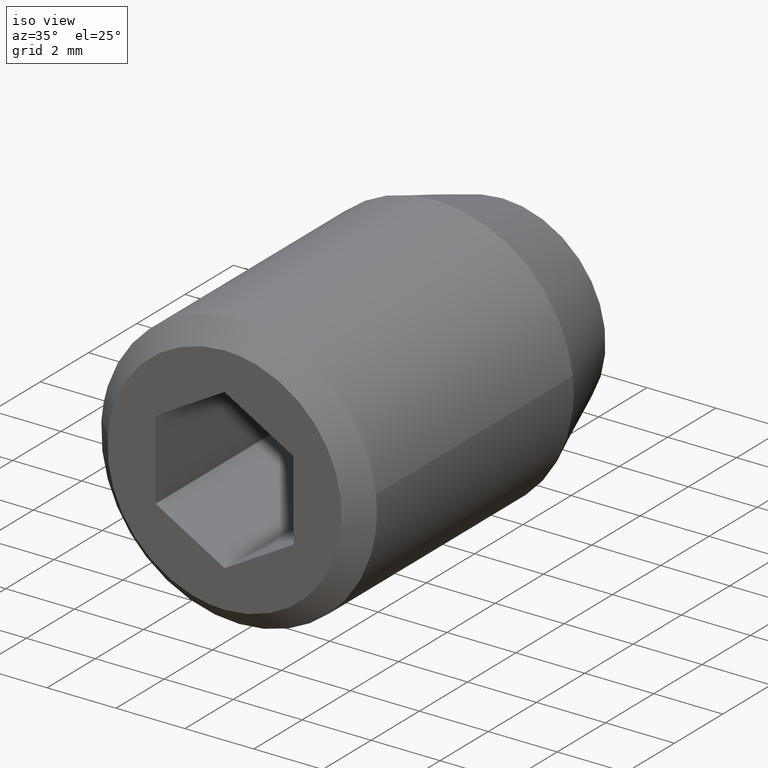
[diagram: clean part render]
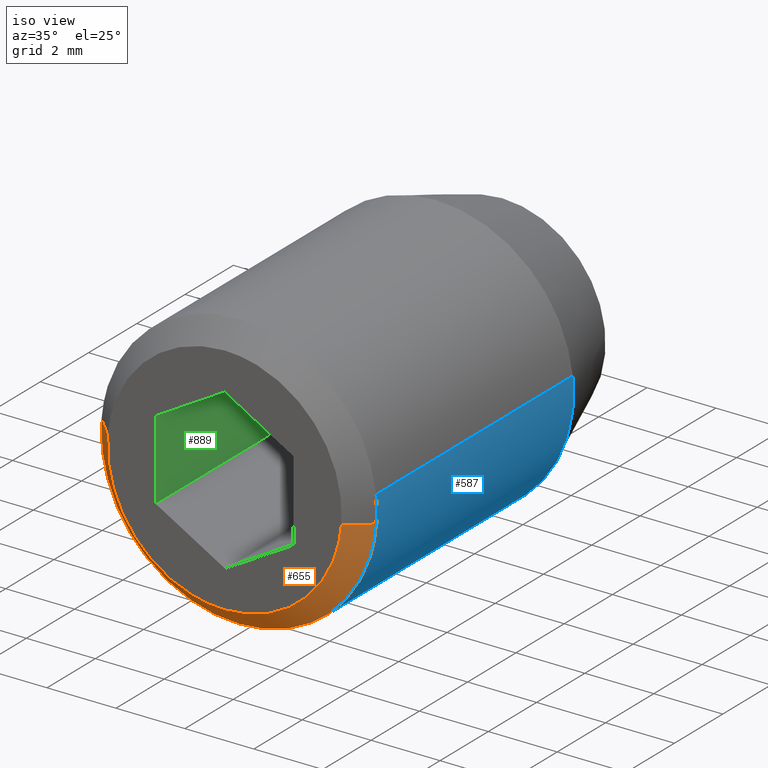
[diagram: same view with three faces highlighted in distinct colors, each labeled with its STEP entity id]
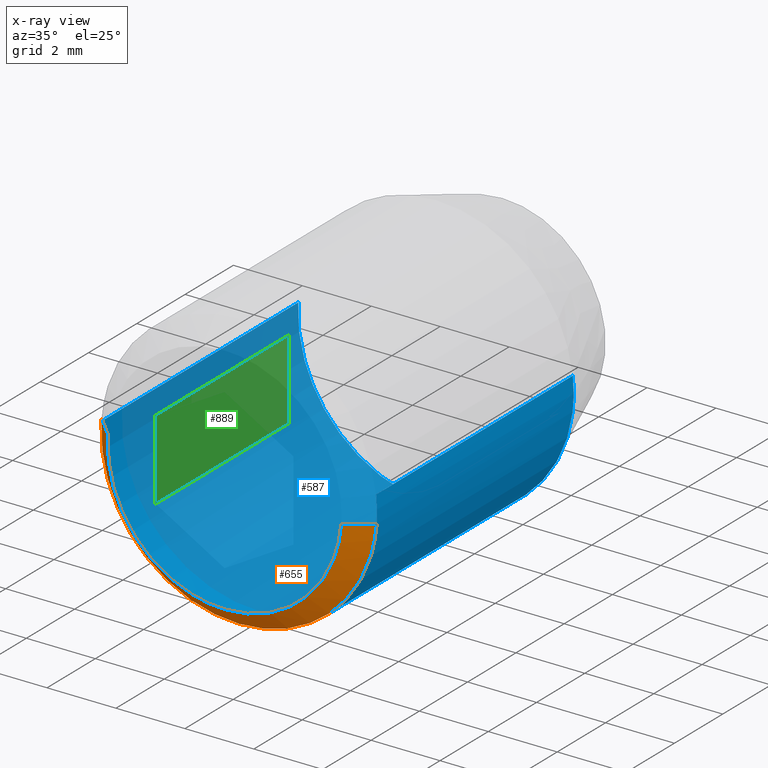
[diagram: x-ray of the same camera — body ghosted, the three highlighted faces saturated]
A machine part, iso view with three faces highlighted in distinct colors.
The next image is the same camera in x-ray (body ghosted, the three faces saturated) — at least one of them is partly hidden behind the body in this view.
Their STEP definitions:

[orange] entity #655 — the highlighted face is a freeform B-spline surface patch.
#473=CARTESIAN_POINT('',(-3.992539216601213,-10.900000000000000,0.244193783502418));
#474=VERTEX_POINT('',#473);
#480=CARTESIAN_POINT('',(-3.987669334932551,-10.899999999999920,0.313836382912057));
#481=VERTEX_POINT('',#480);
#482=CARTESIAN_POINT('',(-3.987669334932551,-10.899999999999920,0.313836382912057));
#483=CARTESIAN_POINT('',(-3.990408173004920,-10.900000000000002,0.279036145624283));
#484=CARTESIAN_POINT('',(-3.992539216601213,-10.900000000000006,0.244193783502418));
#492=(BOUNDED_CURVE()B_SPLINE_CURVE(2,(#482,#483,#484),.UNSPECIFIED.,.F.,.U.)B_SPLINE_CURVE_WITH_KNOTS((3,3),(0.736331300632709,0.739332994623574),.UNSPECIFIED.)CURVE()GEOMETRIC_REPRESENTATION_ITEM()RATIONAL_B_SPLINE_CURVE((0.969723356171695,0.972855509354259,0.976072111073157))REPRESENTATION_ITEM(''));
#493=EDGE_CURVE('',#481,#474,#492,.T.);
#533=CARTESIAN_POINT('',(3.987669334932551,-10.899999999999920,-0.313836382912059));
#534=VERTEX_POINT('',#533);
#550=CARTESIAN_POINT('',(0.0,-10.900000000000000,-4.000000000000001));
#551=VERTEX_POINT('',#550);
#552=CARTESIAN_POINT('',(0.0,-10.900000000000000,-4.000000000000001));
#553=CARTESIAN_POINT('',(3.697561966631584,-10.900000000000004,-4.000000000000001));
#554=CARTESIAN_POINT('',(3.987669334932552,-10.899999999999917,-0.313836382912059));
#562=(BOUNDED_CURVE()B_SPLINE_CURVE(2,(#552,#553,#554),.UNSPECIFIED.,.F.,.U.)B_SPLINE_CURVE_WITH_KNOTS((3,3),(0.0,0.236331300632709),.UNSPECIFIED.)CURVE()GEOMETRIC_REPRESENTATION_ITEM()RATIONAL_B_SPLINE_CURVE((1.0,0.723120658605264,0.969723356171695))REPRESENTATION_ITEM(''));
#563=EDGE_CURVE('',#551,#534,#562,.T.);
#565=CARTESIAN_POINT('',(-3.992539216601213,-10.899999999999999,0.244193783502418));
#566=CARTESIAN_POINT('',(-4.0,-10.900000000000007,0.122210677506903));
#567=CARTESIAN_POINT('',(-4.0,-10.900000000000000,-6.735335E-016));
#568=CARTESIAN_POINT('',(-4.000000000000000,-10.900000000000000,-4.000000000000001));
#569=CARTESIAN_POINT('',(0.0,-10.900000000000000,-4.000000000000001));
#577=(BOUNDED_CURVE()B_SPLINE_CURVE(2,(#565,#566,#567,#568,#569),.UNSPECIFIED.,.F.,.U.)B_SPLINE_CURVE_WITH_KNOTS((3,2,3),(0.739332994623574,0.750000000000000,1.0),.UNSPECIFIED.)CURVE()GEOMETRIC_REPRESENTATION_ITEM()RATIONAL_B_SPLINE_CURVE((0.976072111073157,0.987502825840793,1.0,0.707106781186548,1.0))REPRESENTATION_ITEM(''));
#578=EDGE_CURVE('',#474,#551,#577,.T.);
#588=CARTESIAN_POINT('',(3.374565174686635,-11.515000000000001,-0.265584039038758));
#589=CARTESIAN_POINT('',(3.108981135647878,-11.515000000000002,-3.640149213725392));
#590=CARTESIAN_POINT('',(-0.265584039038757,-11.515000000000001,-3.374565174686636));
#591=CARTESIAN_POINT('',(-3.640149213725392,-11.515000000000002,-3.108981135647879));
#592=CARTESIAN_POINT('',(-3.374565174686635,-11.515000000000001,0.265584039038756));
#593=CARTESIAN_POINT('',(4.002996938938679,-10.884625000000000,-0.315042691508200));
#594=CARTESIAN_POINT('',(3.687954247430480,-10.884624999999998,-4.318039630446878));
#595=CARTESIAN_POINT('',(-0.315042691508200,-10.884625000000000,-4.002996938938680));
#596=CARTESIAN_POINT('',(-4.318039630446878,-10.884624999999998,-3.687954247430481));
#597=CARTESIAN_POINT('',(-4.002996938938679,-10.884625000000000,0.315042691508199));
#605=(BOUNDED_SURFACE()B_SPLINE_SURFACE(2,1,((#588,#593),(#589,#594),(#590,#595),(#591,#596),(#592,#597)),.UNSPECIFIED.,.F.,.F.,.U.)B_SPLINE_SURFACE_WITH_KNOTS((3,2,3),(2,2),(0.0,6.652891132055502,13.305782264111000),(0.0,1.0),.UNSPECIFIED.)GEOMETRIC_REPRESENTATION_ITEM()RATIONAL_B_SPLINE_SURFACE(((1.0,1.0),(0.707106781186548,0.707106781186548),(1.0,1.0),(0.707106781186548,0.707106781186548),(1.0,1.0)))REPRESENTATION_ITEM('')SURFACE());
#606=ORIENTED_EDGE('',*,*,#563,.T.);
#607=CARTESIAN_POINT('',(3.389518934692640,-11.499999999999989,-0.266760925474770));
#608=VERTEX_POINT('',#607);
#609=CARTESIAN_POINT('',(3.389518934692640,-11.499999999999989,-0.266760925474770));
#610=CARTESIAN_POINT('',(3.987669334932551,-10.899999999999920,-0.313836382912059));
#611=QUASI_UNIFORM_CURVE('',1,(#609,#610),.UNSPECIFIED.,.F.,.U.);
#612=EDGE_CURVE('',#608,#534,#611,.T.);
#613=ORIENTED_EDGE('',*,*,#612,.F.);
#614=CARTESIAN_POINT('',(0.0,-11.500000000000000,-3.400000000000001));
#615=VERTEX_POINT('',#614);
#616=CARTESIAN_POINT('',(0.0,-11.500000000000000,-3.400000000000001));
#617=CARTESIAN_POINT('',(3.142927671637728,-11.499999999999998,-3.400000000000002));
#618=CARTESIAN_POINT('',(3.389518934692640,-11.499999999999993,-0.266760925474770));
#626=(BOUNDED_CURVE()B_SPLINE_CURVE(2,(#616,#617,#618),.UNSPECIFIED.,.F.,.U.)B_SPLINE_CURVE_WITH_KNOTS((3,3),(0.0,0.236331300632757),.UNSPECIFIED.)CURVE()GEOMETRIC_REPRESENTATION_ITEM()RATIONAL_B_SPLINE_CURVE((1.0,0.723120658605208,0.969723356171796))REPRESENTATION_ITEM(''));
#627=EDGE_CURVE('',#615,#608,#626,.T.);
#628=ORIENTED_EDGE('',*,*,#627,.F.);
#629=CARTESIAN_POINT('',(-3.389518934692640,-11.499999999999989,0.266760925474769));
#630=VERTEX_POINT('',#629);
#631=CARTESIAN_POINT('',(-3.389518934692639,-11.499999999999993,0.266760925474769));
#632=CARTESIAN_POINT('',(-3.400000000000000,-11.499999999999995,0.133586363826171));
#633=CARTESIAN_POINT('',(-3.400000000000000,-11.500000000000000,-6.735335E-016));
#634=CARTESIAN_POINT('',(-3.400000000000001,-11.500000000000000,-3.400000000000002));
#635=CARTESIAN_POINT('',(0.0,-11.500000000000000,-3.400000000000001));
#643=(BOUNDED_CURVE()B_SPLINE_CURVE(2,(#631,#632,#633,#634,#635),.UNSPECIFIED.,.F.,.U.)B_SPLINE_CURVE_WITH_KNOTS((3,2,3),(0.736331300632757,0.750000000000000,1.0),.UNSPECIFIED.)CURVE()GEOMETRIC_REPRESENTATION_ITEM()RATIONAL_B_SPLINE_CURVE((0.969723356171796,0.983986122581340,1.0,0.707106781186548,1.0))REPRESENTATION_ITEM(''));
#644=EDGE_CURVE('',#630,#615,#643,.T.);
#645=ORIENTED_EDGE('',*,*,#644,.F.);
#646=CARTESIAN_POINT('',(-3.389518934692640,-11.499999999999989,0.266760925474769));
#647=CARTESIAN_POINT('',(-3.987669334932551,-10.899999999999920,0.313836382912057));
#648=QUASI_UNIFORM_CURVE('',1,(#646,#647),.UNSPECIFIED.,.F.,.U.);
#649=EDGE_CURVE('',#630,#481,#648,.T.);
#650=ORIENTED_EDGE('',*,*,#649,.T.);
#651=ORIENTED_EDGE('',*,*,#493,.T.);
#652=ORIENTED_EDGE('',*,*,#578,.T.);
#653=EDGE_LOOP('',(#606,#613,#628,#645,#650,#651,#652));
#654=FACE_OUTER_BOUND('',#653,.T.);
#655=ADVANCED_FACE('',(#654),#605,.T.);

[blue] entity #587 — the highlighted face is a freeform B-spline surface patch.
#305=CARTESIAN_POINT('',(-3.992539304152811,-2.747476998073565,0.244192340534479));
#306=VERTEX_POINT('',#305);
#327=CARTESIAN_POINT('',(3.973876911369272,-2.747477000000000,0.456401460651424));
#328=VERTEX_POINT('',#327);
#342=CARTESIAN_POINT('',(0.0,-2.747477000000000,-4.000000000000001));
#343=VERTEX_POINT('',#342);
#344=CARTESIAN_POINT('',(0.0,-2.747477000000000,-4.000000000000001));
#345=CARTESIAN_POINT('',(4.000000000000000,-2.747477000000000,-4.000000000000001));
#346=CARTESIAN_POINT('',(4.0,-2.747477000000000,-6.735335E-016));
#347=CARTESIAN_POINT('',(4.0,-2.747477000000000,0.228948335031703));
#348=CARTESIAN_POINT('',(3.973876911369273,-2.747477000000000,0.456401460651424));
#356=(BOUNDED_CURVE()B_SPLINE_CURVE(2,(#344,#345,#346,#347,#348),.UNSPECIFIED.,.F.,.U.)B_SPLINE_CURVE_WITH_KNOTS((3,2,3),(0.0,0.250000000000000,0.269767704844007),.UNSPECIFIED.)CURVE()GEOMETRIC_REPRESENTATION_ITEM()RATIONAL_B_SPLINE_CURVE((1.0,0.707106781186548,1.0,0.976840693198738,0.957343837127389))REPRESENTATION_ITEM(''));
#357=EDGE_CURVE('',#343,#328,#356,.T.);
#359=CARTESIAN_POINT('',(-3.243894291882399,-2.747477000000100,-2.340331135350953));
#360=VERTEX_POINT('',#359);
#361=CARTESIAN_POINT('',(-3.243894291882400,-2.747477000000101,-2.340331135350953));
#362=CARTESIAN_POINT('',(-2.046514115828961,-2.747477000000000,-4.000000000000002));
#363=CARTESIAN_POINT('',(0.0,-2.747477000000000,-4.000000000000001));
#371=(BOUNDED_CURVE()B_SPLINE_CURVE(2,(#361,#362,#363),.UNSPECIFIED.,.F.,.U.)B_SPLINE_CURVE_WITH_KNOTS((3,3),(0.850743050382073,1.0),.UNSPECIFIED.)CURVE()GEOMETRIC_REPRESENTATION_ITEM()RATIONAL_B_SPLINE_CURVE((0.859068214727311,0.825134606384512,1.0))REPRESENTATION_ITEM(''));
#372=EDGE_CURVE('',#360,#343,#371,.T.);
#412=CARTESIAN_POINT('',(-3.992539304152811,-2.747476998073565,0.244192340534479));
#413=CARTESIAN_POINT('',(-4.000000000000001,-2.747477000000000,0.122210141865207));
#414=CARTESIAN_POINT('',(-4.0,-2.747477000000000,-6.735335E-016));
#415=CARTESIAN_POINT('',(-4.000000000000001,-2.747477000000001,-1.292305514714377));
#416=CARTESIAN_POINT('',(-3.243894291882399,-2.747477000000101,-2.340331135350953));
#424=(BOUNDED_CURVE()B_SPLINE_CURVE(2,(#412,#413,#414,#415,#416),.UNSPECIFIED.,.F.,.U.)B_SPLINE_CURVE_WITH_KNOTS((3,2,3),(0.739333040792111,0.750000000000000,0.850743050382072),.UNSPECIFIED.)CURVE()GEOMETRIC_REPRESENTATION_ITEM()RATIONAL_B_SPLINE_CURVE((0.976072210021168,0.987502879930598,1.0,0.881972174802036,0.859068214727311))REPRESENTATION_ITEM(''));
#425=EDGE_CURVE('',#306,#360,#424,.T.);
#449=CARTESIAN_POINT('',(3.973876773742199,-10.900000000000000,0.456402658967154));
#450=VERTEX_POINT('',#449);
#466=CARTESIAN_POINT('',(3.973876911369272,-2.747477000000000,0.456401460651424));
#467=CARTESIAN_POINT('',(3.973876773742199,-10.900000000000000,0.456402658967154));
#468=QUASI_UNIFORM_CURVE('',1,(#466,#467),.UNSPECIFIED.,.F.,.U.);
#469=EDGE_CURVE('',#328,#450,#468,.T.);
#473=CARTESIAN_POINT('',(-3.992539216601213,-10.900000000000000,0.244193783502418));
#474=VERTEX_POINT('',#473);
#475=CARTESIAN_POINT('',(-3.992539304152811,-2.747476998073565,0.244192340534479));
#476=CARTESIAN_POINT('',(-3.992539216601213,-10.900000000000000,0.244193783502418));
#477=QUASI_UNIFORM_CURVE('',1,(#475,#476),.UNSPECIFIED.,.F.,.U.);
#478=EDGE_CURVE('',#306,#474,#477,.T.);
#511=CARTESIAN_POINT('',(-3.992539193687467,-2.543663924999999,0.244194158139427));
#512=CARTESIAN_POINT('',(-4.236733351826894,-2.543663924999999,-3.748345035548040));
#513=CARTESIAN_POINT('',(-0.244194158139428,-2.543663924999999,-3.992539193687468));
#514=CARTESIAN_POINT('',(3.748345035548039,-2.543663924999999,-4.236733351826896));
#515=CARTESIAN_POINT('',(3.992539193687467,-2.543663924999999,-0.244194158139429));
#516=CARTESIAN_POINT('',(4.014014553579111,-2.543663924999999,0.106924872386186));
#517=CARTESIAN_POINT('',(3.973876773742854,-2.543663924999999,0.456402658961441));
#518=CARTESIAN_POINT('',(-3.992539193687467,-11.108908401875000,0.244194158139427));
#519=CARTESIAN_POINT('',(-4.236733351826894,-11.108908401875002,-3.748345035548040));
#520=CARTESIAN_POINT('',(-0.244194158139428,-11.108908401875000,-3.992539193687468));
#521=CARTESIAN_POINT('',(3.748345035548039,-11.108908401875002,-4.236733351826896));
#522=CARTESIAN_POINT('',(3.992539193687467,-11.108908401875000,-0.244194158139429));
#523=CARTESIAN_POINT('',(4.014014553579111,-11.108908401874999,0.106924872386186));
#524=CARTESIAN_POINT('',(3.973876773742854,-11.108908401875002,0.456402658961441));
#532=(BOUNDED_SURFACE()B_SPLINE_SURFACE(2,1,((#511,#518),(#512,#519),(#513,#520),(#514,#521),(#515,#522),(#516,#523),(#517,#524)),.UNSPECIFIED.,.F.,.F.,.U.)B_SPLINE_SURFACE_WITH_KNOTS((3,2,2,3),(2,2),(0.0,6.627416997969519,13.254833995939039,14.050124035695379),(0.0,8.565244476875003),.UNSPECIFIED.)GEOMETRIC_REPRESENTATION_ITEM()RATIONAL_B_SPLINE_SURFACE(((1.0,1.0),(0.707106781186548,0.707106781186548),(1.0,1.0),(0.707106781186548,0.707106781186548),(1.0,1.0),(0.964852813742386,0.964852813742386),(0.938140952186599,0.938140952186599)))REPRESENTATION_ITEM('')SURFACE());
#533=CARTESIAN_POINT('',(3.987669334932551,-10.899999999999920,-0.313836382912059));
#534=VERTEX_POINT('',#533);
#535=CARTESIAN_POINT('',(3.987669334932551,-10.899999999999919,-0.313836382912059));
#536=CARTESIAN_POINT('',(4.000000000000001,-10.900000000000000,-0.157160428031352));
#537=CARTESIAN_POINT('',(4.0,-10.900000000000000,-6.735335E-016));
#538=CARTESIAN_POINT('',(4.000000000000000,-10.899999999999997,0.228948940106940));
#539=CARTESIAN_POINT('',(3.973876773742199,-10.899999999999999,0.456402658967154));
#547=(BOUNDED_CURVE()B_SPLINE_CURVE(2,(#535,#536,#537,#538,#539),.UNSPECIFIED.,.F.,.U.)B_SPLINE_CURVE_WITH_KNOTS((3,2,3),(0.236331300632709,0.250000000000000,0.269767755877096),.UNSPECIFIED.)CURVE()GEOMETRIC_REPRESENTATION_ITEM()RATIONAL_B_SPLINE_CURVE((0.969723356171695,0.983986122581283,1.0,0.976840633409755,0.957343736459704))REPRESENTATION_ITEM(''));
#548=EDGE_CURVE('',#534,#450,#547,.T.);
#549=ORIENTED_EDGE('',*,*,#548,.F.);
#550=CARTESIAN_POINT('',(0.0,-10.900000000000000,-4.000000000000001));
#551=VERTEX_POINT('',#550);
#552=CARTESIAN_POINT('',(0.0,-10.900000000000000,-4.000000000000001));
#553=CARTESIAN_POINT('',(3.697561966631584,-10.900000000000004,-4.000000000000001));
#554=CARTESIAN_POINT('',(3.987669334932552,-10.899999999999917,-0.313836382912059));
#562=(BOUNDED_CURVE()B_SPLINE_CURVE(2,(#552,#553,#554),.UNSPECIFIED.,.F.,.U.)B_SPLINE_CURVE_WITH_KNOTS((3,3),(0.0,0.236331300632709),.UNSPECIFIED.)CURVE()GEOMETRIC_REPRESENTATION_ITEM()RATIONAL_B_SPLINE_CURVE((1.0,0.723120658605264,0.969723356171695))REPRESENTATION_ITEM(''));
#563=EDGE_CURVE('',#551,#534,#562,.T.);
#564=ORIENTED_EDGE('',*,*,#563,.F.);
#565=CARTESIAN_POINT('',(-3.992539216601213,-10.899999999999999,0.244193783502418));
#566=CARTESIAN_POINT('',(-4.0,-10.900000000000007,0.122210677506903));
#567=CARTESIAN_POINT('',(-4.0,-10.900000000000000,-6.735335E-016));
#568=CARTESIAN_POINT('',(-4.000000000000000,-10.900000000000000,-4.000000000000001));
#569=CARTESIAN_POINT('',(0.0,-10.900000000000000,-4.000000000000001));
#577=(BOUNDED_CURVE()B_SPLINE_CURVE(2,(#565,#566,#567,#568,#569),.UNSPECIFIED.,.F.,.U.)B_SPLINE_CURVE_WITH_KNOTS((3,2,3),(0.739332994623574,0.750000000000000,1.0),.UNSPECIFIED.)CURVE()GEOMETRIC_REPRESENTATION_ITEM()RATIONAL_B_SPLINE_CURVE((0.976072111073157,0.987502825840793,1.0,0.707106781186548,1.0))REPRESENTATION_ITEM(''));
#578=EDGE_CURVE('',#474,#551,#577,.T.);
#579=ORIENTED_EDGE('',*,*,#578,.F.);
#580=ORIENTED_EDGE('',*,*,#478,.F.);
#581=ORIENTED_EDGE('',*,*,#425,.T.);
#582=ORIENTED_EDGE('',*,*,#372,.T.);
#583=ORIENTED_EDGE('',*,*,#357,.T.);
#584=ORIENTED_EDGE('',*,*,#469,.T.);
#585=EDGE_LOOP('',(#549,#564,#579,#580,#581,#582,#583,#584));
#586=FACE_OUTER_BOUND('',#585,.T.);
#587=ADVANCED_FACE('',(#586),#532,.T.);

[green] entity #889 — the highlighted face is a freeform B-spline surface patch.
#731=CARTESIAN_POINT('',(-2.0,-6.0,1.154701000000000));
#732=VERTEX_POINT('',#731);
#738=CARTESIAN_POINT('',(-2.0,-6.0,-1.154701000000000));
#739=VERTEX_POINT('',#738);
#740=CARTESIAN_POINT('',(-2.0,-6.0,1.154701000000000));
#741=CARTESIAN_POINT('',(-2.0,-6.0,-1.154701000000000));
#742=QUASI_UNIFORM_CURVE('',1,(#740,#741),.UNSPECIFIED.,.F.,.U.);
#743=EDGE_CURVE('',#732,#739,#742,.T.);
#851=CARTESIAN_POINT('',(-2.0,-11.500000000000000,-1.154701000000000));
#852=VERTEX_POINT('',#851);
#860=CARTESIAN_POINT('',(-2.0,-6.0,-1.154701000000000));
#861=CARTESIAN_POINT('',(-2.0,-11.500000000000000,-1.154701000000000));
#862=QUASI_UNIFORM_CURVE('',1,(#860,#861),.UNSPECIFIED.,.F.,.U.);
#863=EDGE_CURVE('',#739,#852,#862,.T.);
#868=CARTESIAN_POINT('',(-2.0,-11.774724989339930,-1.270055625423931));
#869=CARTESIAN_POINT('',(-2.0,-11.774724989339930,1.270055687366920));
#870=CARTESIAN_POINT('',(-2.0,-5.725274863138571,-1.270055625423931));
#871=CARTESIAN_POINT('',(-2.0,-5.725274863138571,1.270055687366920));
#872=B_SPLINE_SURFACE_WITH_KNOTS('',1,1,((#868,#870),(#869,#871)),.UNSPECIFIED.,.F.,.F.,.U.,(2,2),(2,2),(0.0,2.540111312790851),(0.0,6.049450126201363),.UNSPECIFIED.);
#873=CARTESIAN_POINT('',(-2.0,-11.500000000000000,1.154701000000000));
#874=VERTEX_POINT('',#873);
#875=CARTESIAN_POINT('',(-2.0,-11.500000000000000,1.154701000000000));
#876=CARTESIAN_POINT('',(-2.0,-11.500000000000000,-1.154701000000000));
#877=QUASI_UNIFORM_CURVE('',1,(#875,#876),.UNSPECIFIED.,.F.,.U.);
#878=EDGE_CURVE('',#874,#852,#877,.T.);
#879=ORIENTED_EDGE('',*,*,#878,.T.);
#880=ORIENTED_EDGE('',*,*,#863,.F.);
#881=ORIENTED_EDGE('',*,*,#743,.F.);
#882=CARTESIAN_POINT('',(-2.0,-6.0,1.154701000000000));
#883=CARTESIAN_POINT('',(-2.0,-11.500000000000000,1.154701000000000));
#884=QUASI_UNIFORM_CURVE('',1,(#882,#883),.UNSPECIFIED.,.F.,.U.);
#885=EDGE_CURVE('',#732,#874,#884,.T.);
#886=ORIENTED_EDGE('',*,*,#885,.T.);
#887=EDGE_LOOP('',(#879,#880,#881,#886));
#888=FACE_OUTER_BOUND('',#887,.T.);
#889=ADVANCED_FACE('',(#888),#872,.F.);